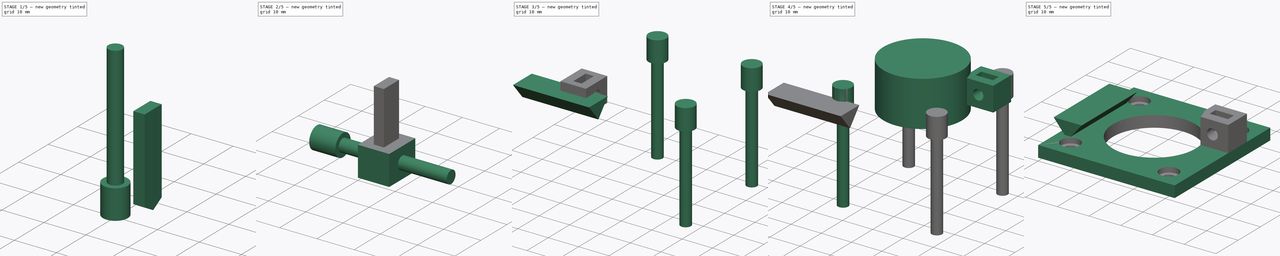
[diagram: build sequence overview — one tinted view per stage of 5, left to right]
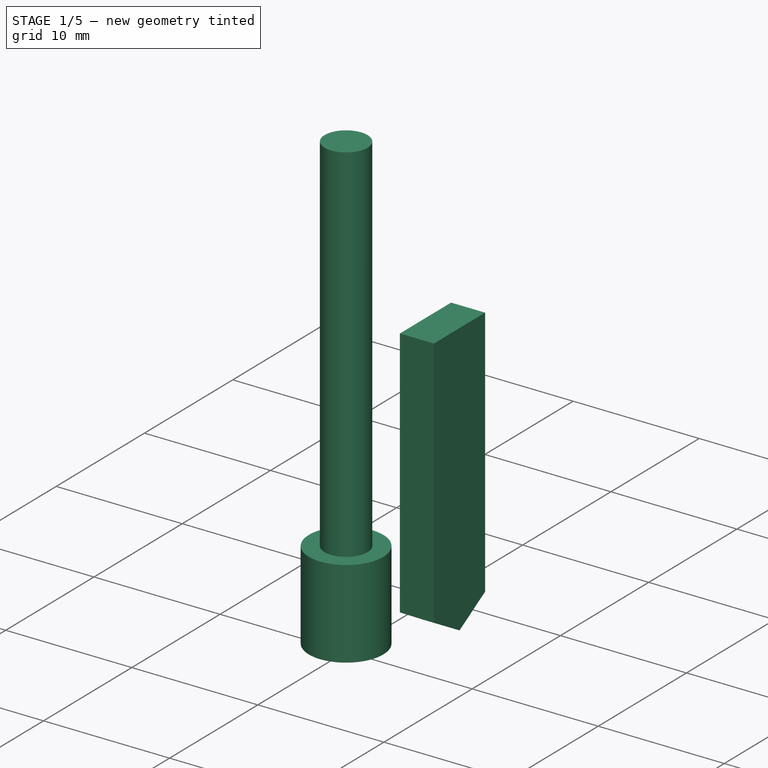
[diagram: stage 1 of 5 — iso view after this stage's code; geometry added in this stage tinted green]
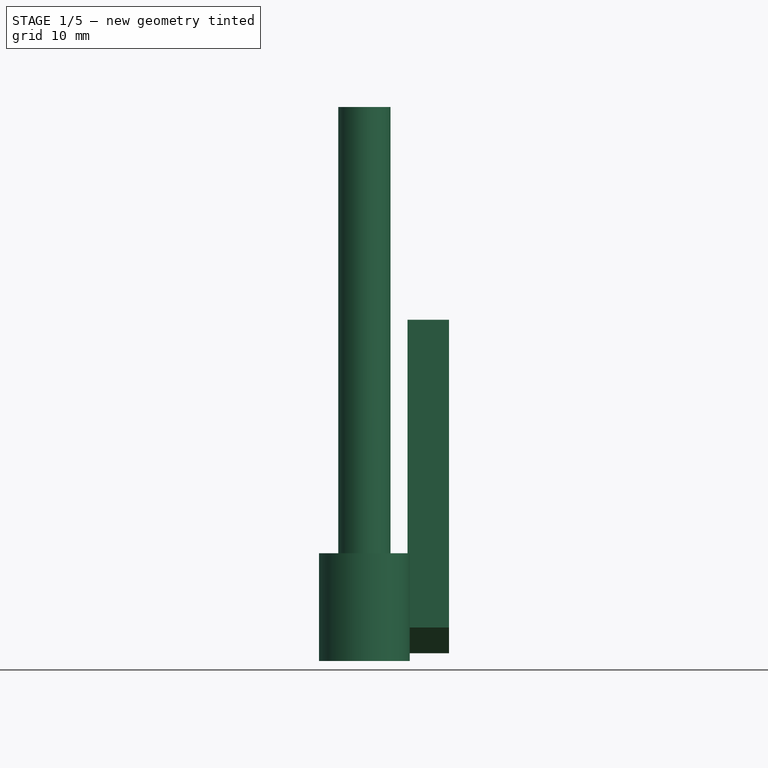
[diagram: stage 1 of 5 — front view after this stage's code; geometry added in this stage tinted green]
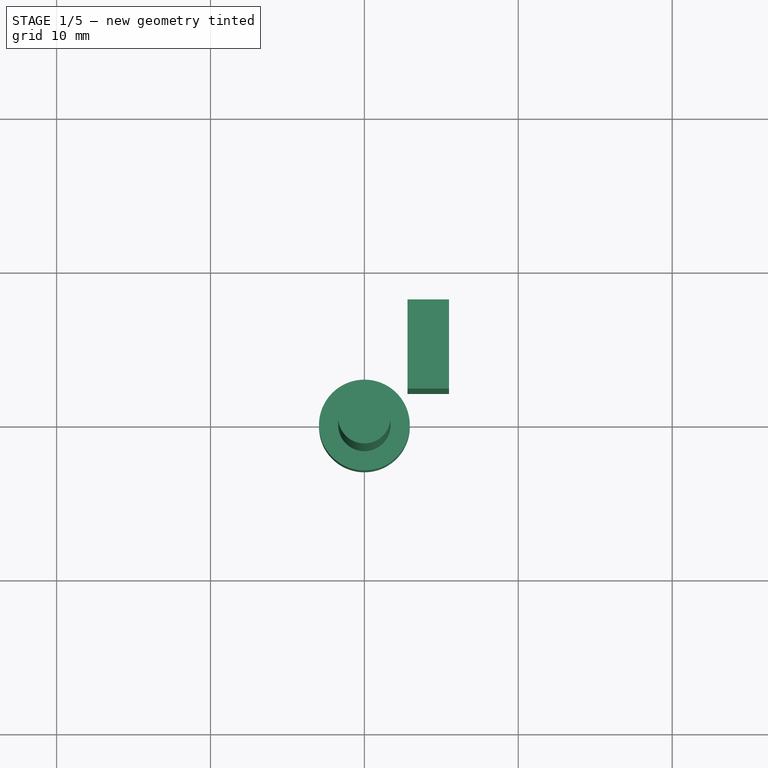
[diagram: stage 1 of 5 — top view after this stage's code; geometry added in this stage tinted green]
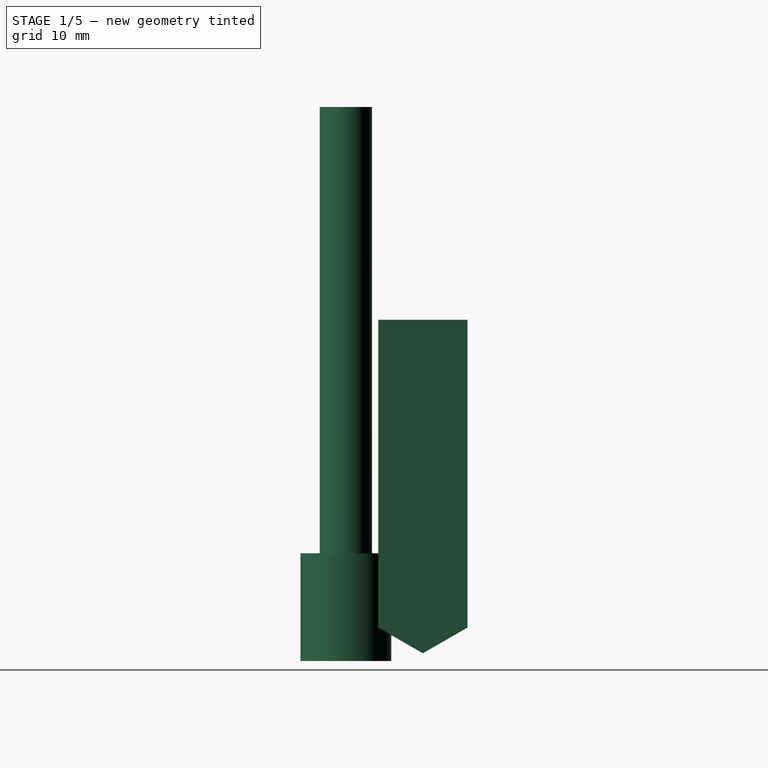
[diagram: stage 1 of 5 — right view after this stage's code; geometry added in this stage tinted green]
FCSTD DOCUMENT  (FreeCAD 0.16R6460 (Git))
Label: Art56MotorHolderA
License: All rights reserved
LicenseURL: http://en.wikipedia.org/wiki/All_rights_reserved
objects: Part::FeaturePython×8, Part::MultiFuse×4, Part::Cylinder×3, Sketcher::SketchObject×2, PartDesign::Pad×2, Part::Box×2, Part::Cut×2, App::DocumentObjectGroup×1
note: 25 computed .brp shape members not serialized (recipe doc carries the construction recipe); baked Part::Feature solids carry a one-line shape summary decoded from their .brp

FEATURE [Part::Cylinder] Cylinder  label="M3BoltHead"
  Angle = 360
  Height = 7
  Radius = 2.95
FEATURE [Part::Cylinder] Cylinder001  label="M3BoltBody"
  Angle = 360
  Height = 30
  Placement = pos=(0,0,6) rot=(0,0,1;0rad)
  Radius = 1.7
FEATURE [Sketcher::SketchObject] Sketch003  label="M3NutHousingSketch"
  sketch-geometry (5):
    g0: LineSegment StartX=0 StartY=0 StartZ=0 EndX=1.67432 EndY=2.9 EndZ=0
    g1: LineSegment StartX=1.67432 StartY=2.9 StartZ=0 EndX=21.6743 EndY=2.9 EndZ=0
    g2: LineSegment StartX=21.6743 StartY=2.9 StartZ=0 EndX=21.6743 EndY=-2.9 EndZ=0
    g3: LineSegment StartX=21.6743 StartY=-2.9 StartZ=0 EndX=1.67432 EndY=-2.9 EndZ=0
    g4: LineSegment StartX=1.67432 StartY=-2.9 StartZ=0 EndX=0 EndY=0 EndZ=0
  constraints (14):
    c: Coincident(g-1,g0)
    c: Coincident(g0,g1)
    c: Horizontal(g1)
    c: Coincident(g1,g2)
    c: Vertical(g2)
    c: Coincident(g2,g3)
    c: Horizontal(g3)
    c: Coincident(g3,g4)
    c: Coincident(g4,g0)
    c: Equal(g3,g1)
    c: Equal(g4,g0)
    c: DistanceY(g2) = -5.8
    c: Angle(g-1,g0) = 1.0472
    c: DistanceX(g3) = -20
FEATURE [PartDesign::Pad] Pad002  label="M3NutHousing"
  Length = 2.7
  Length2 = 100
  Sketch = -> Sketch003
  Type = 0
FEATURE [Part::FeaturePython] Clone292  label="Clone of M3NutHousing026"  # Draft clone (typed FeaturePython)
  Objects = -> [Pad002]
  Placement = pos=(5.5,5,0.5) rot=(0,-1,0;1.5708rad)
  Scale = (1,1,1)
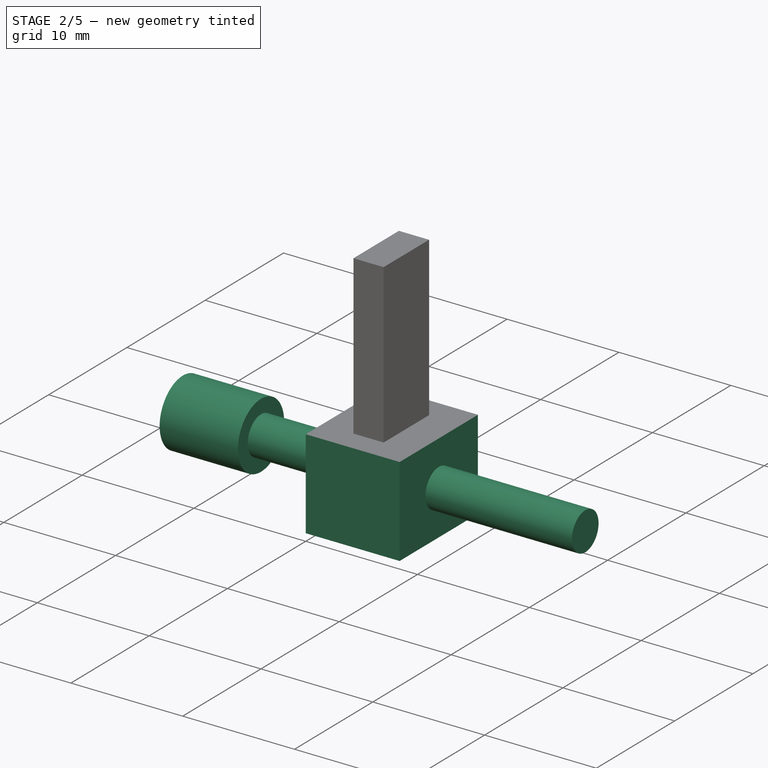
[diagram: stage 2 of 5 — iso view after this stage's code; geometry added in this stage tinted green]
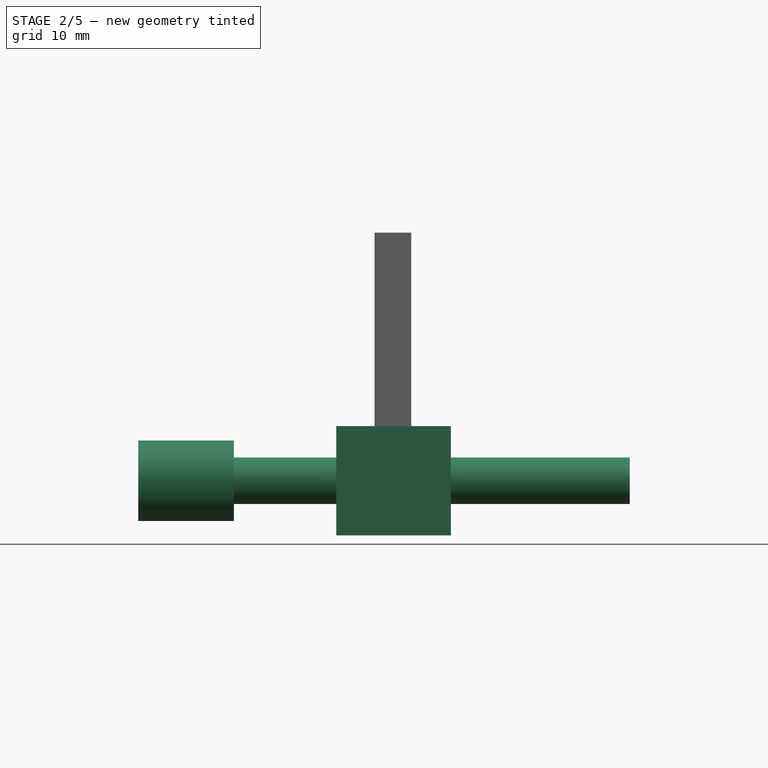
[diagram: stage 2 of 5 — front view after this stage's code; geometry added in this stage tinted green]
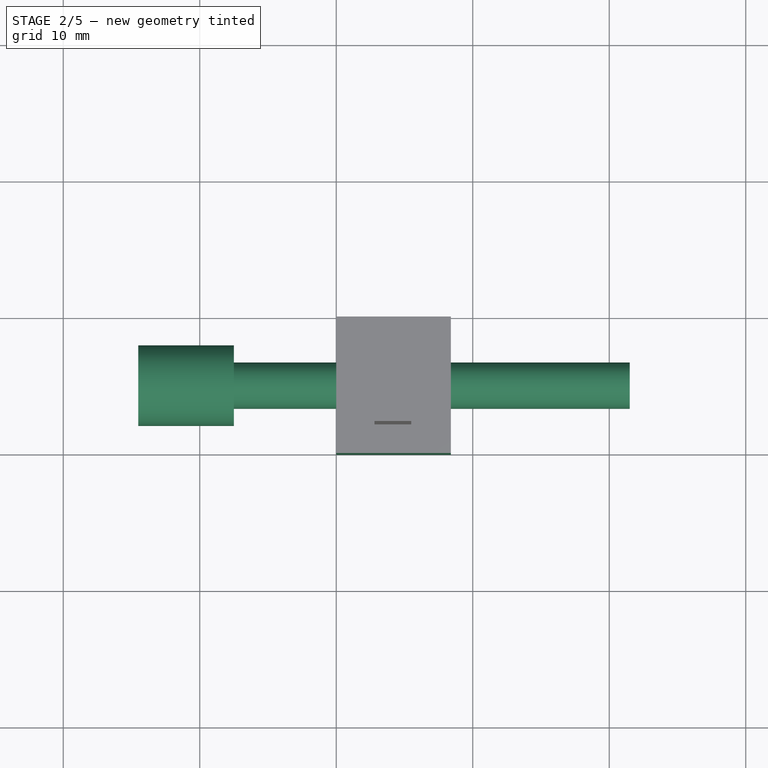
[diagram: stage 2 of 5 — top view after this stage's code; geometry added in this stage tinted green]
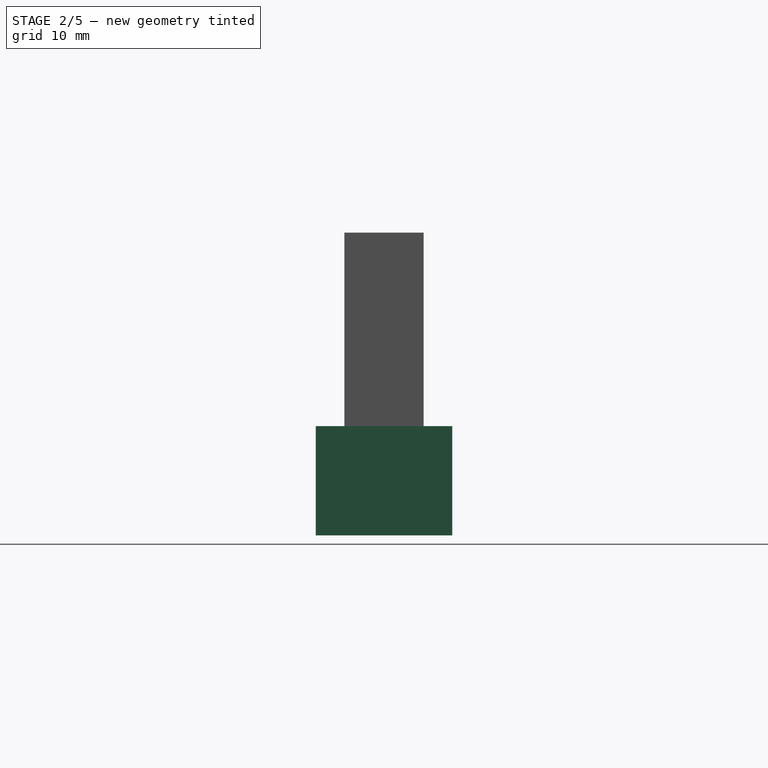
[diagram: stage 2 of 5 — right view after this stage's code; geometry added in this stage tinted green]
FEATURE [Part::MultiFuse] Fusion  label="M3Bolt"
  Shapes = -> [Cylinder001,Cylinder]
FEATURE [Sketcher::SketchObject] Sketch056
  Placement = pos=(0,0,0) rot=(0.57735,0.57735,0.57735;2.0944rad)
  sketch-geometry (3):
    g0: LineSegment StartX=-4.4 StartY=5.24372 StartZ=0 EndX=4.4 EndY=5.24372 EndZ=0
    g1: LineSegment StartX=4.4 StartY=5.24372 StartZ=0 EndX=0 EndY=0 EndZ=0
    g2: LineSegment StartX=0 StartY=0 StartZ=0 EndX=-4.4 EndY=5.24372 EndZ=0
  constraints (8):
    c: Horizontal(g0)
    c: Coincident(g0,g1)
    c: Coincident(g1,g2)
    c: Coincident(g2,g0)
    c: DistanceX(g0) = 8.8
    c: Angle(g2,g0) = 0.872665
    c: Angle(g0,g1) = 0.872665
    c: Coincident(g1,g-1)
FEATURE [Part::Box] Box255  label="Cube019"
  Height = 8
  Length = 8.4
  Width = 10
FEATURE [Part::FeaturePython] Clone291  label="Clone of M3Bolt103"  # Draft clone (typed FeaturePython)
  Objects = -> [Fusion]
  Placement = pos=(-14.5,5,4) rot=(0,1,0;1.5708rad)
  Scale = (1,1,1)
FEATURE [Part::MultiFuse] Fusion101
  Shapes = -> [Clone291,Clone292]
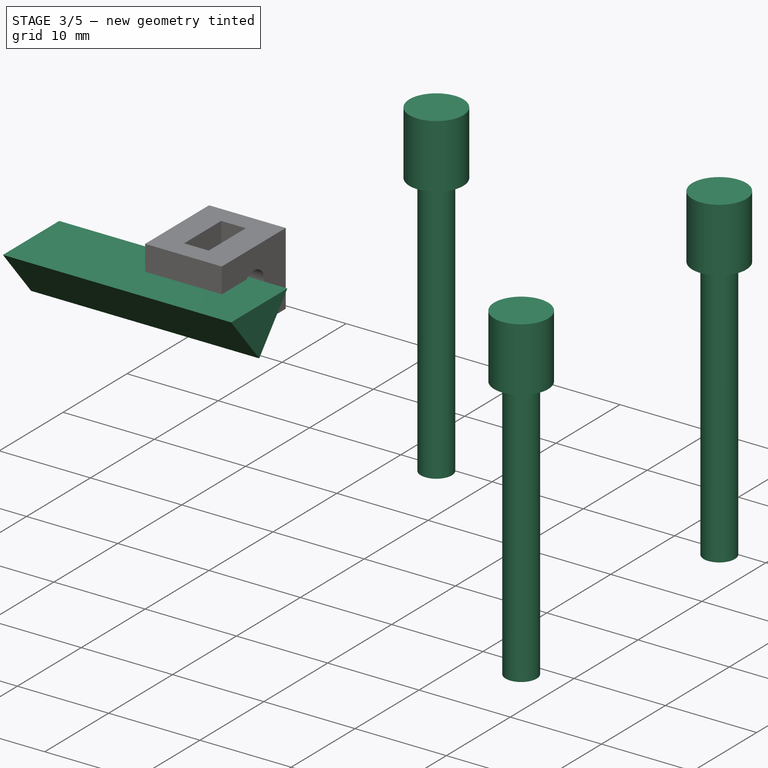
[diagram: stage 3 of 5 — iso view after this stage's code; geometry added in this stage tinted green]
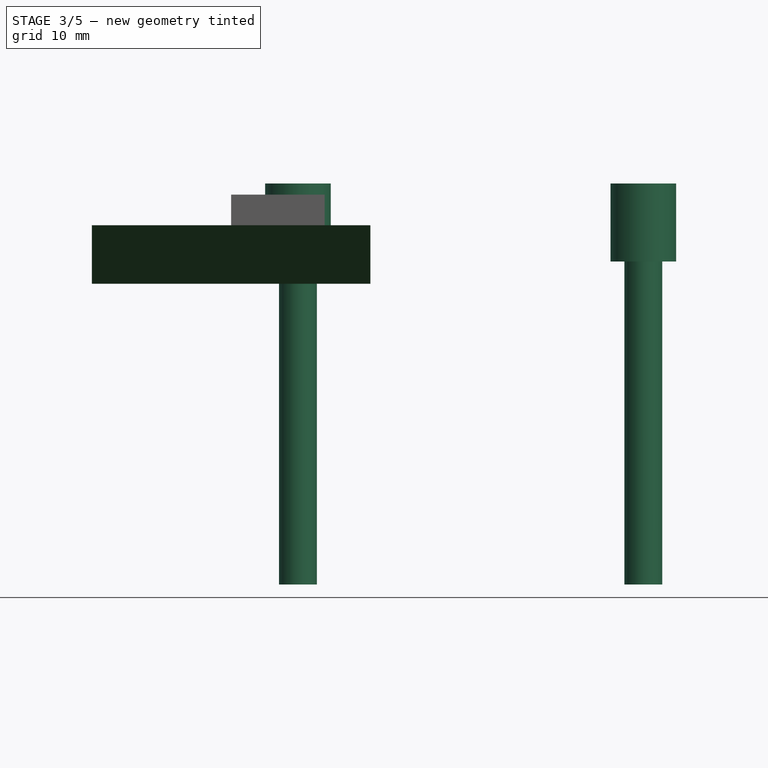
[diagram: stage 3 of 5 — front view after this stage's code; geometry added in this stage tinted green]
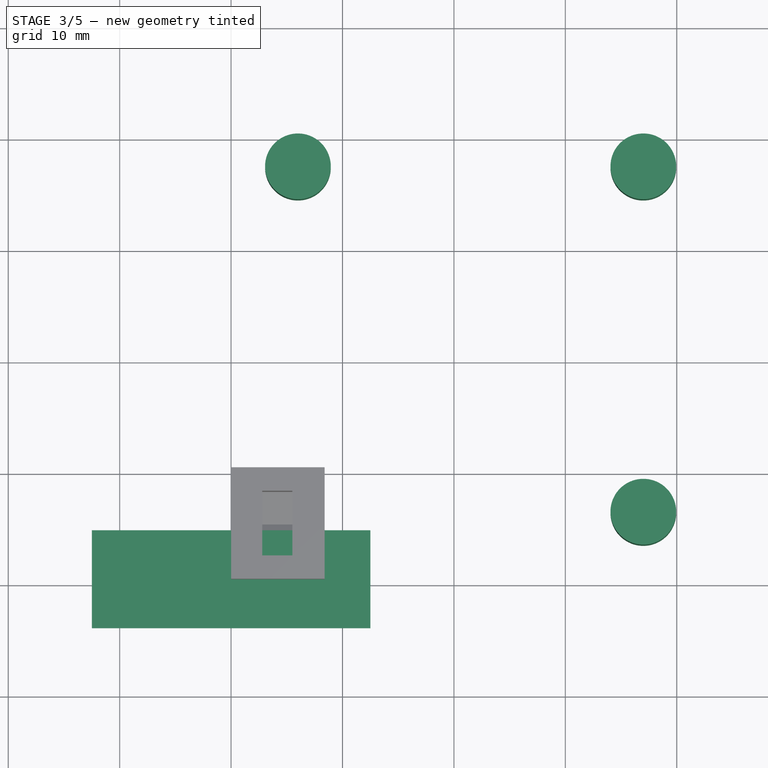
[diagram: stage 3 of 5 — top view after this stage's code; geometry added in this stage tinted green]
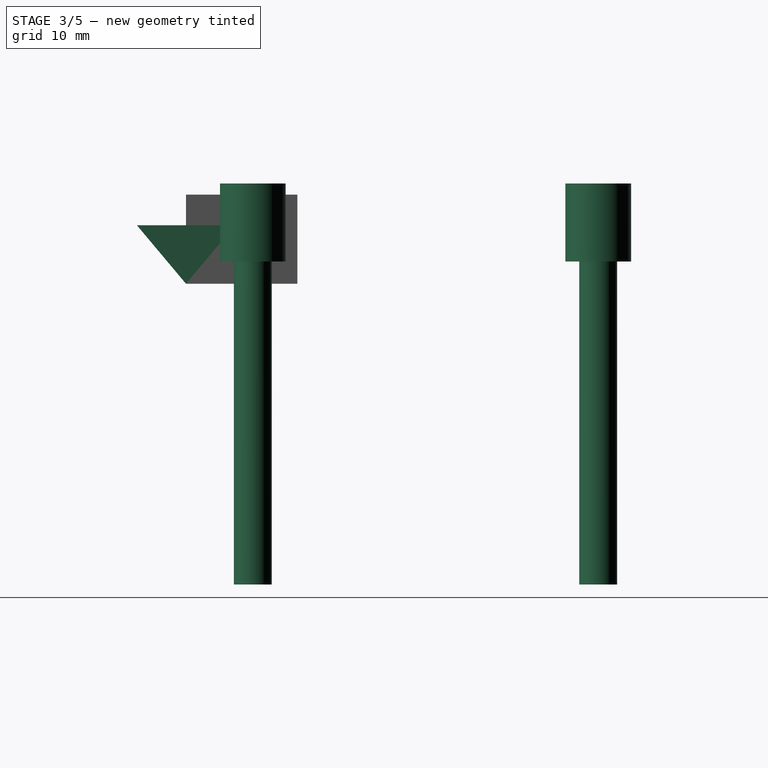
[diagram: stage 3 of 5 — right view after this stage's code; geometry added in this stage tinted green]
FEATURE [Part::FeaturePython] Clone287  label="Clone of M3Bolt100"  # Draft clone (typed FeaturePython)
  Objects = -> [Fusion]
  Placement = pos=(6,37,9) rot=(0.707107,-0.707107,0;3.14159rad)
  Scale = (1,1,1)
FEATURE [Part::FeaturePython] Clone288  label="Clone of M3Bolt101"  # Draft clone (typed FeaturePython)
  Objects = -> [Fusion]
  Placement = pos=(37,37,9) rot=(0.707107,-0.707107,0;3.14159rad)
  Scale = (1,1,1)
FEATURE [Part::FeaturePython] Clone289  label="Clone of M3Bolt102"  # Draft clone (typed FeaturePython)
  Objects = -> [Fusion]
  Placement = pos=(37,6,9) rot=(0.707107,-0.707107,0;3.14159rad)
  Scale = (1,1,1)
FEATURE [PartDesign::Pad] Pad039  label="Art56MilanoGuideMaster"
  Length = 25
  Length2 = 100
  Midplane = true
  Placement = pos=(0,0,0) rot=(0.57735,0.57735,0.57735;2.0944rad)
  Sketch = -> Sketch056
  Type = 0
FEATURE [Part::Cut] Cut087  label="Art56NutHolderMaster"
  Base = -> Box255
  Tool = -> Fusion101
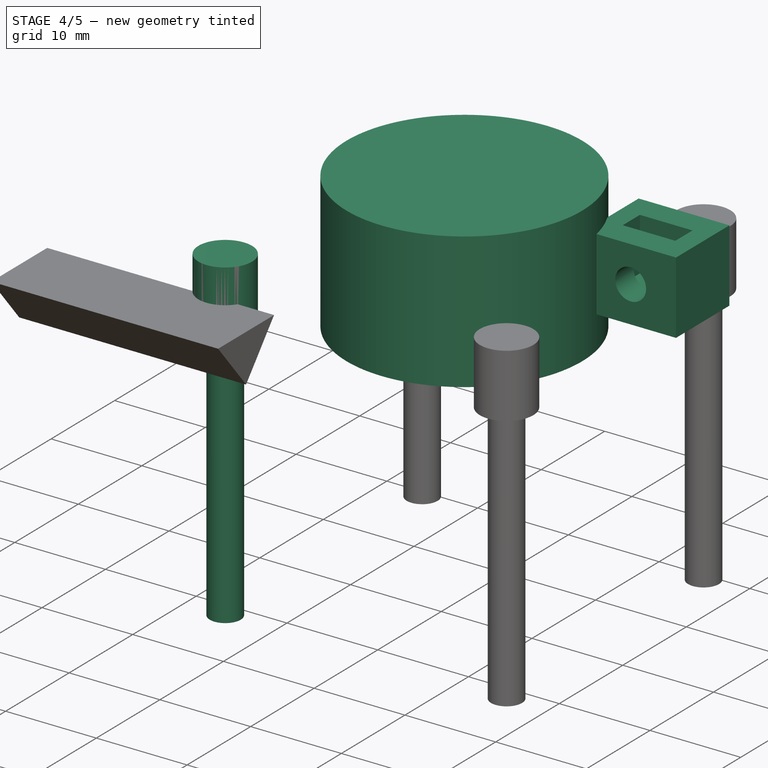
[diagram: stage 4 of 5 — iso view after this stage's code; geometry added in this stage tinted green]
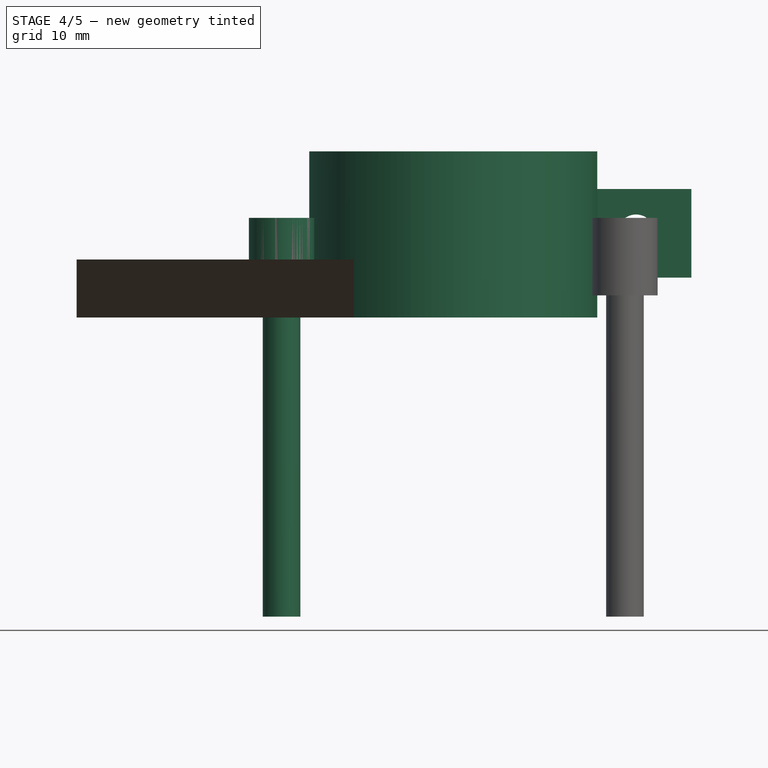
[diagram: stage 4 of 5 — front view after this stage's code; geometry added in this stage tinted green]
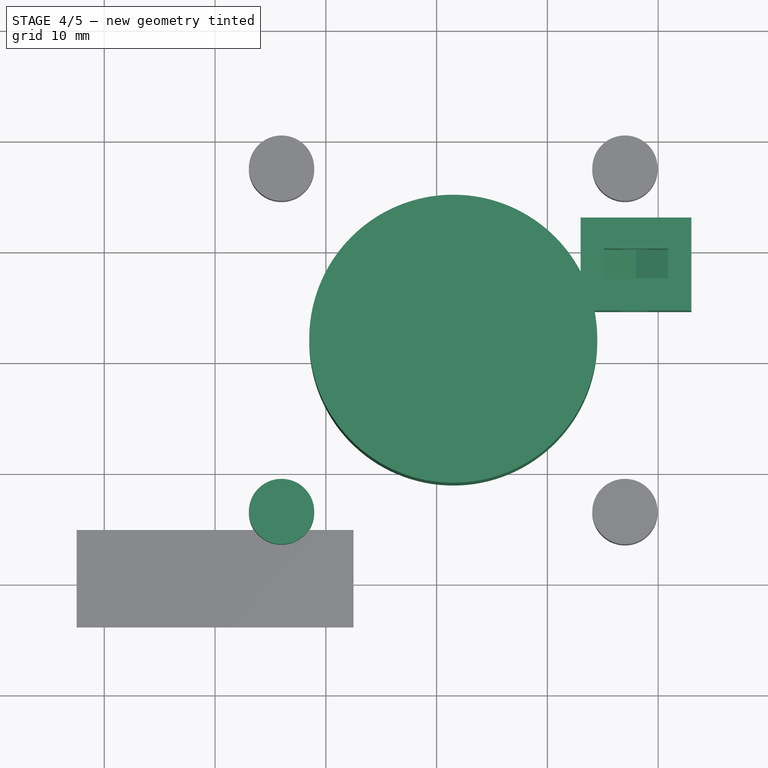
[diagram: stage 4 of 5 — top view after this stage's code; geometry added in this stage tinted green]
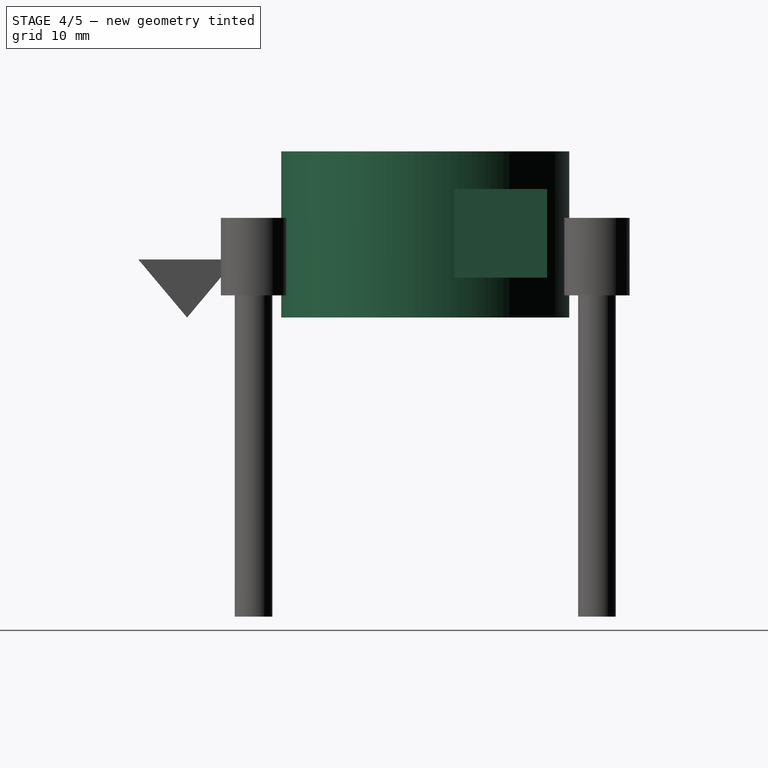
[diagram: stage 4 of 5 — right view after this stage's code; geometry added in this stage tinted green]
FEATURE [Part::Cylinder] Cylinder1027  label="Cylinder1071"
  Angle = 360
  Height = 15
  Placement = pos=(21.5,21.5,0) rot=(0,0,-1;1.5708rad)
  Radius = 13
FEATURE [Part::FeaturePython] Clone286  label="Clone of M3Bolt099"  # Draft clone (typed FeaturePython)
  Objects = -> [Fusion]
  Placement = pos=(6,6,9) rot=(0.707107,-0.707107,0;3.14159rad)
  Scale = (1,1,1)
FEATURE [Part::MultiFuse] Fusion106
  Shapes = -> [Cylinder1027,Clone287,Clone289,Clone286,Clone288]
FEATURE [Part::FeaturePython] Clone293  label="Clone of Art56NutHolderMaster"  # Draft clone (typed FeaturePython)
  Objects = -> [Cut087]
  Placement = pos=(33,32.5,3.6) rot=(0,0,-1;1.5708rad)
  Scale = (1,1,1)
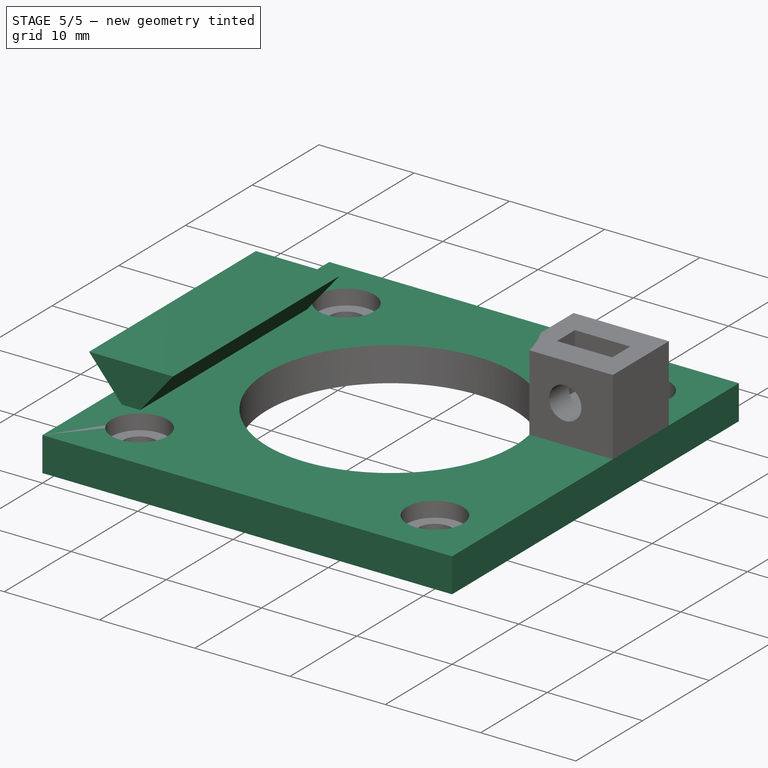
[diagram: stage 5 of 5 — iso view after this stage's code; geometry added in this stage tinted green]
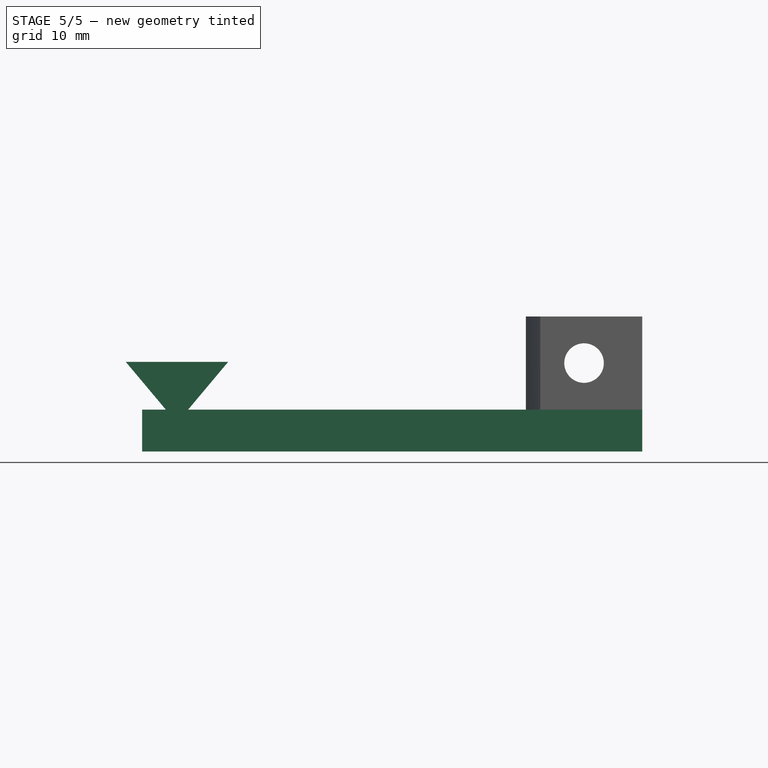
[diagram: stage 5 of 5 — front view after this stage's code; geometry added in this stage tinted green]
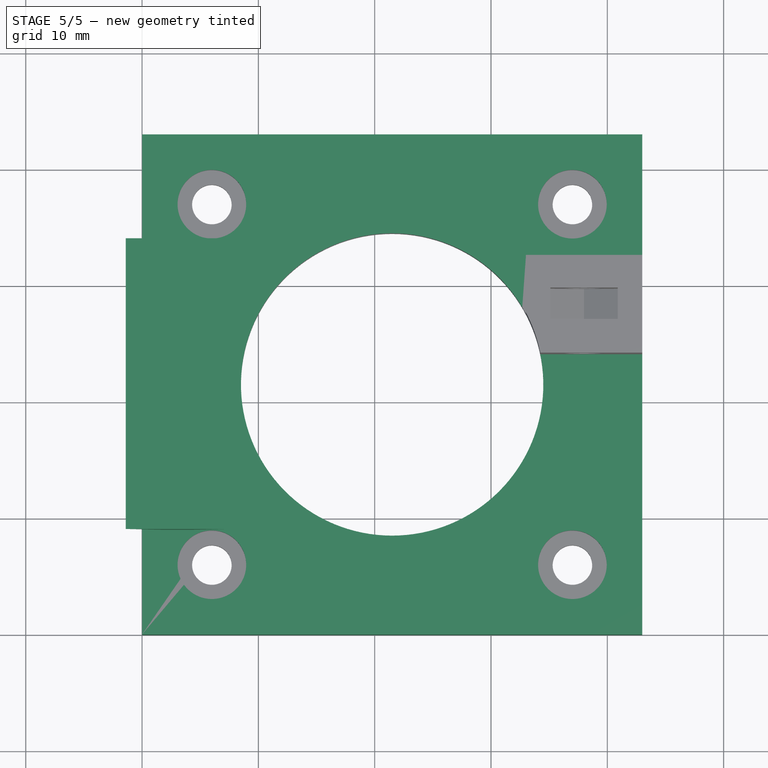
[diagram: stage 5 of 5 — top view after this stage's code; geometry added in this stage tinted green]
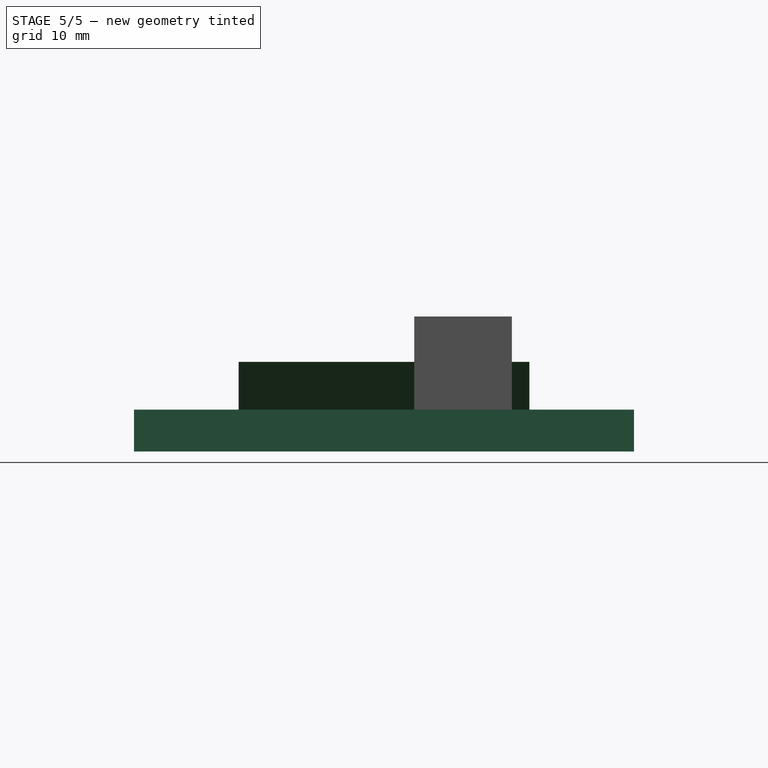
[diagram: stage 5 of 5 — right view after this stage's code; geometry added in this stage tinted green]
FEATURE [Part::Box] Box254  label="Cube018"
  Height = 3.6
  Length = 43
  Placement = pos=(0,43,0) rot=(0,0,-1;1.5708rad)
  Width = 43
FEATURE [Part::FeaturePython] Clone290  label="Clone of Art56MilanoGuideMaster"  # Draft clone (typed FeaturePython)
  Objects = -> [Pad039]
  Placement = pos=(3,21.5,2.45628) rot=(1,0,0;1.5708rad)
  Scale = (1,1,1)
FEATURE [Part::MultiFuse] Fusion105
  Shapes = -> [Box254,Clone290,Clone293]
FEATURE [Part::Cut] Cut089  label="Art56MotorHolderA"
  Base = -> Fusion105
  Tool = -> Fusion106
FEATURE [App::DocumentObjectGroup] Group  label="Master"
  Group = -> [Fusion,Pad002,Pad039,Cut087]
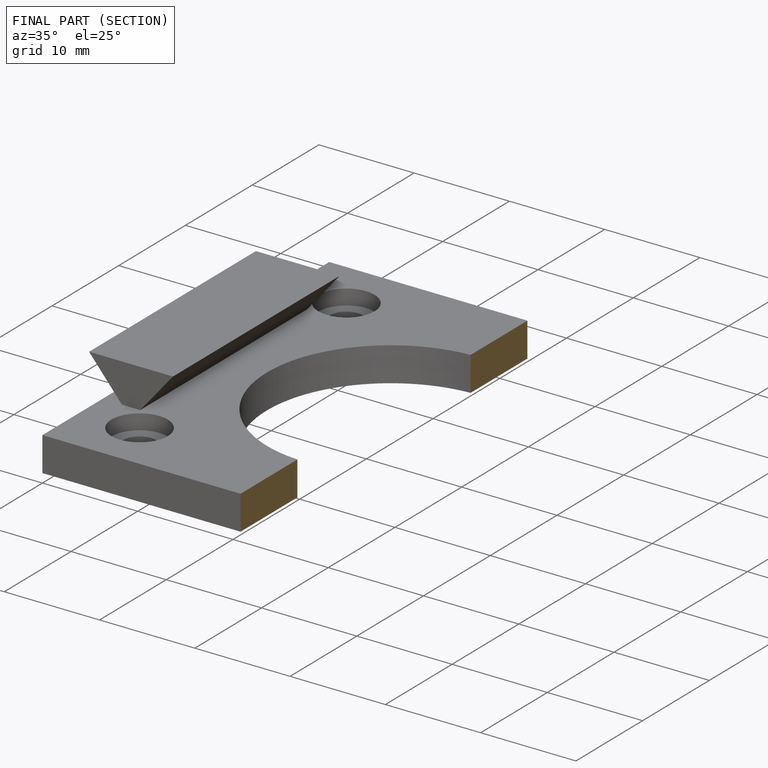
[diagram: finished part — half-section view (interior)]
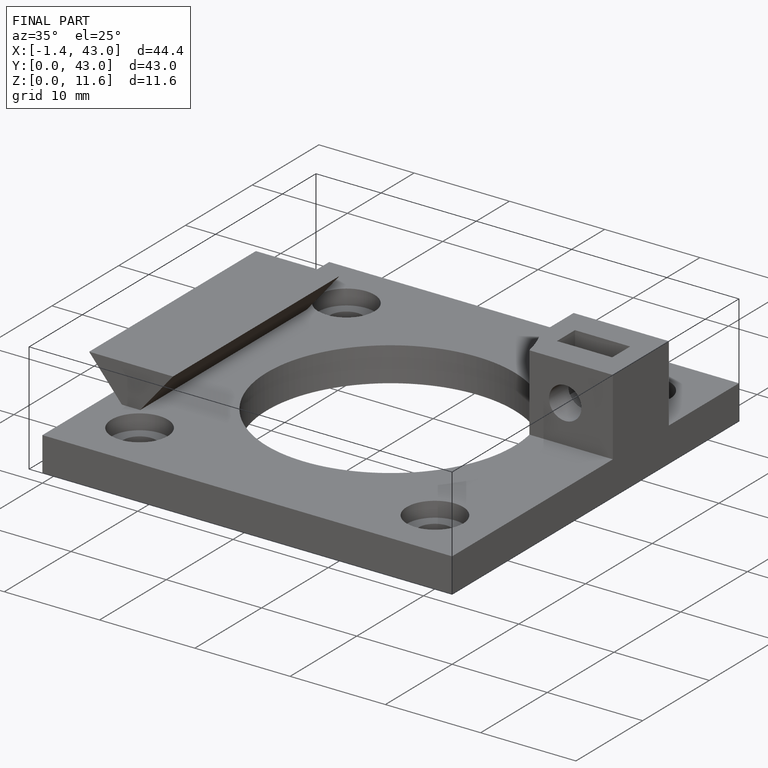
[diagram: finished part — iso view with bounding-box wireframe]
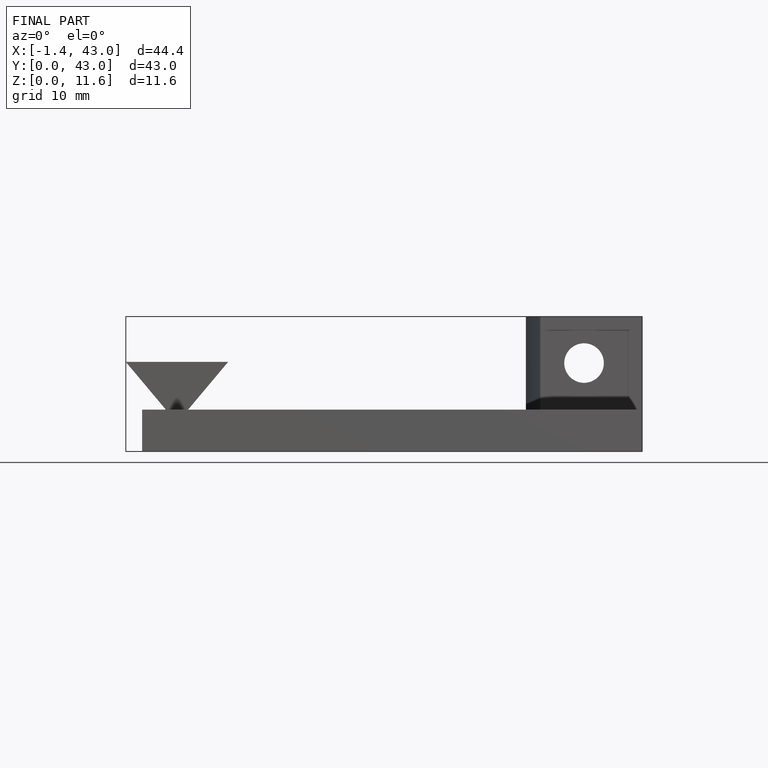
[diagram: finished part — front view with bounding-box wireframe]
